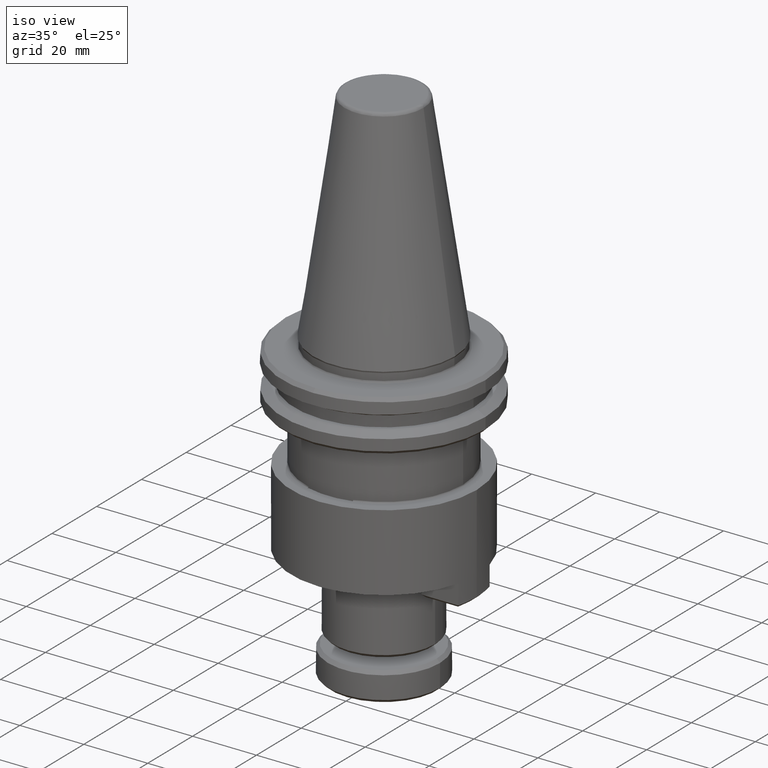
[diagram: clean part render]
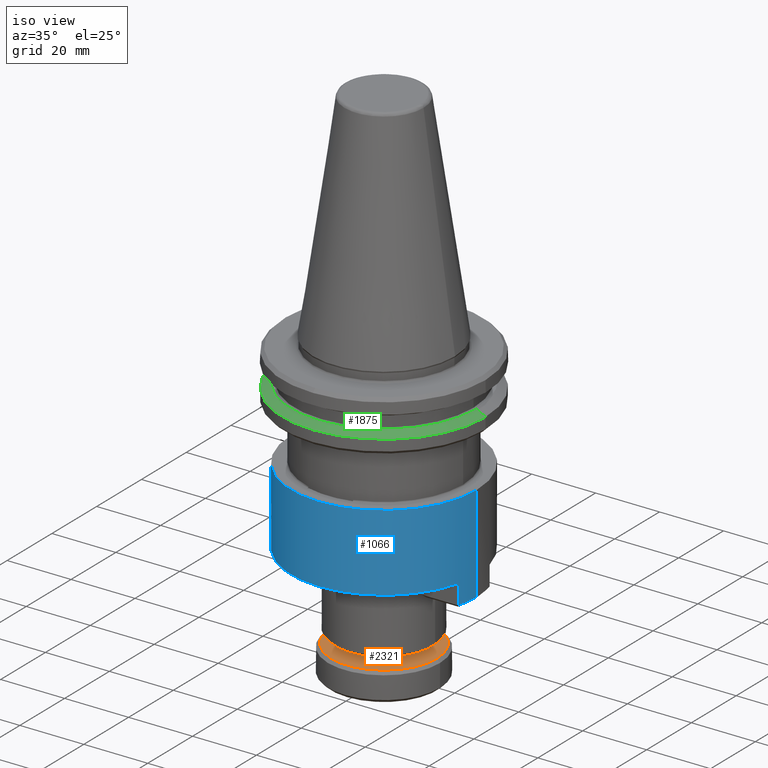
[diagram: same view with three faces highlighted in distinct colors, each labeled with its STEP entity id]
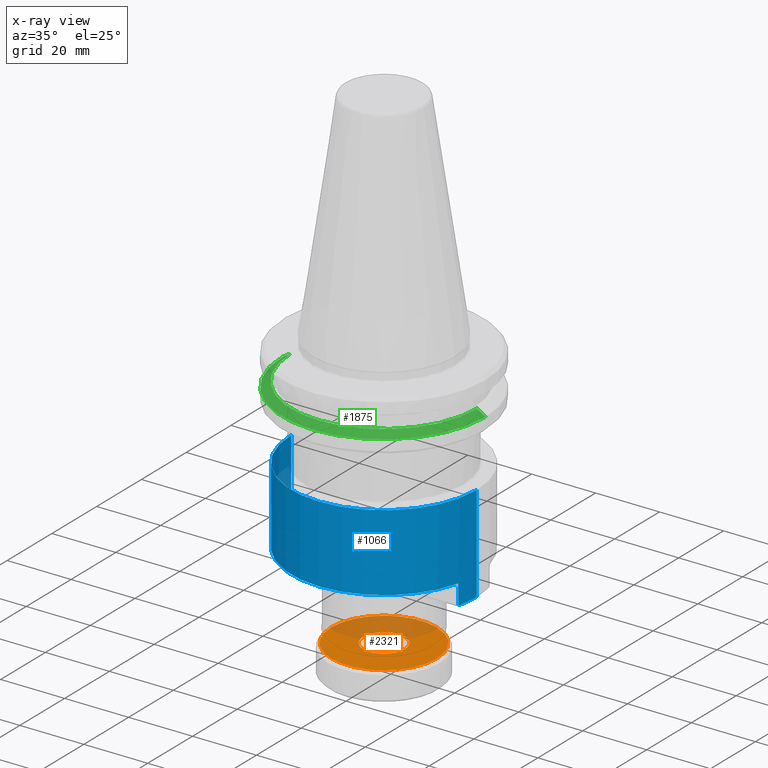
[diagram: x-ray of the same camera — body ghosted, the three highlighted faces saturated]
A machine part, iso view with three faces highlighted in distinct colors.
The next image is the same camera in x-ray (body ghosted, the three faces saturated) — at least one of them is partly hidden behind the body in this view.
Their STEP definitions:

[orange] entity #2321 — the highlighted planar face has unit normal (0, -0, 1).
#50 = CARTESIAN_POINT ( 'NONE',  ( 76.12787623287346200, 95.73300316906220100, 8.763988602712823100 ) ) ;
#64 = CARTESIAN_POINT ( 'NONE',  ( 78.41946340499964700, 98.90369755947129700, 8.763988602712824900 ) ) ;
#68 = VERTEX_POINT ( 'NONE', #3329 ) ;
#77 = CARTESIAN_POINT ( 'NONE',  ( 80.75551400868872100, 100.0017903558217400, 8.763988602712823100 ) ) ;
#89 = CARTESIAN_POINT ( 'NONE',  ( 83.45564309301649100, 100.0823529544989900, 8.763988602712824900 ) ) ;
#102 = CARTESIAN_POINT ( 'NONE',  ( 86.57789196611868500, 98.59929565824862200, 8.763988602712821300 ) ) ;
#114 = CARTESIAN_POINT ( 'NONE',  ( 88.33270326881370200, 96.10317416616021500, 8.763988602712826600 ) ) ;
#154 = EDGE_CURVE ( 'NONE', #68, #2818, #2777, .T. ) ;
#160 = CARTESIAN_POINT ( 'NONE',  ( 88.74564547168917300, 92.84622996054110900, 8.763988602712824900 ) ) ;
#177 = CARTESIAN_POINT ( 'NONE',  ( 87.96745397197193500, 90.50350040067402800, 8.763988602712824900 ) ) ;
#188 = CARTESIAN_POINT ( 'NONE',  ( 85.04454145384464400, 87.79266168346958900, 8.763988602712823100 ) ) ;
#204 = CARTESIAN_POINT ( 'NONE',  ( 82.69599153489440400, 87.18611175048717100, 8.763988602712823100 ) ) ;
#218 = CARTESIAN_POINT ( 'NONE',  ( 79.95717612321318800, 87.62226208415816600, 8.763988602712823100 ) ) ;
#219 = CARTESIAN_POINT ( 'NONE',  ( 88.79877265865518200, 93.68607934060428000, 8.763988602712824900 ) ) ;
#224 = CARTESIAN_POINT ( 'NONE',  ( 75.81233704681672200, 94.18164415366432300, 8.763988602712826600 ) ) ;
#228 = CARTESIAN_POINT ( 'NONE',  ( 76.88833099999423800, 90.08329245969986200, 8.763988602712823100 ) ) ;
#233 = AXIS2_PLACEMENT_3D ( 'NONE', #2259, #1476, #3283 ) ;
#244 = CARTESIAN_POINT ( 'NONE',  ( 75.91704237217857100, 92.45150199464153200, 8.763988602712824900 ) ) ;
#252 = ORIENTED_EDGE ( 'NONE', *, *, #1668, .T. ) ;
#344 = CARTESIAN_POINT ( 'NONE',  ( 76.21694135145028800, 95.98043893000947000, 8.763988602712826600 ) ) ;
#355 = CARTESIAN_POINT ( 'NONE',  ( 78.64840274964791400, 99.06454904665042700, 8.763988602712824900 ) ) ;
#366 = CARTESIAN_POINT ( 'NONE',  ( 81.01251395400113600, 100.0575963481227000, 8.763988602712824900 ) ) ;
#383 = CARTESIAN_POINT ( 'NONE',  ( 83.99521615921486300, 99.96703954946983100, 8.763988602712826600 ) ) ;
#393 = CARTESIAN_POINT ( 'NONE',  ( 87.27794175348672900, 97.87496262328792800, 8.763988602712824900 ) ) ;
#404 = CARTESIAN_POINT ( 'NONE',  ( 88.52158608724836600, 95.58475399366973600, 8.763988602712828400 ) ) ;
#420 = B_SPLINE_CURVE_WITH_KNOTS ( 'NONE', 3,
 ( #2780, #1511, #224, #1607, #823, #1852, #1197, #2330, #1598, #1671, #50, #1924, #344, #2183, #616, #2438, #890, #2673, #1150, #2945, #1406, #3209, #1682, #64, #1932, #355, #2199, #626, #2449, #899, #2686, #1162, #2957, #1416, #3220, #1693, #77, #1945, #366, #2208, #638, #2461, #905, #2694, #1177, #2968, #1425, #3233, #1705, #89, #1955, #383, #2220, #649, #2470, #918, #2708, #1188, #2985, #1436, #3246, #1716, #102, #1964, #393, #2237, #660, #2479, #932, #2721, #1200, #3000, #1448, #3256, #1725, #114, #1976, #404, #2245, #676, #2490, #943, #2735, #1213, #3011, #1461 ),
 .UNSPECIFIED., .F., .F.,
 ( 4, 1, 1, 1, 2, 2, 1, 1, 2, 2, 1, 2, 2, 2, 1, 1, 2, 2, 1, 1, 1, 2, 2, 1, 1, 1, 2, 2, 2, 1, 1, 1, 2, 2, 1, 1, 2, 2, 1, 2, 2, 2, 1, 1, 2, 2, 1, 1, 1, 2, 2, 1, 1, 1, 2, 2, 4 ),
 ( 0.0000000000000000000, 0.03124999999999634300, 0.04687499999999549700, 0.05468749999999415100, 0.05859374999999364400, 0.06249999999999314400, 0.09375000000000187400, 0.1093750000000072400, 0.1171875000000102600, 0.1250000000000132700, 0.1562500000000322800, 0.1718750000000413600, 0.1875000000000504300, 0.2500000000000878200, 0.2812500000001071900, 0.2968750000001168500, 0.3046875000001215100, 0.3125000000001261200, 0.3437500000001418900, 0.3593750000001493800, 0.3671875000001527100, 0.3710937500001534900, 0.3750000000001542100, 0.4062500000001663700, 0.4218750000001734200, 0.4296875000001779100, 0.4335937500001801900, 0.4375000000001824700, 0.5000000000001964000, 0.5312500000002045000, 0.5468750000002076100, 0.5546875000002090500, 0.5585937500002087200, 0.5625000000002083900, 0.5937500000001977300, 0.6093750000001934000, 0.6171875000001898500, 0.6250000000001864100, 0.6562500000001717500, 0.6718750000001632000, 0.6875000000001545400, 0.7500000000001145800, 0.7812500000000940400, 0.7968750000000836000, 0.8046875000000771600, 0.8125000000000707200, 0.8437500000000467400, 0.8593750000000351900, 0.8671875000000294200, 0.8710937500000265300, 0.8750000000000236500, 0.9062500000000071100, 0.9218749999999997800, 0.9296874999999961100, 0.9335937499999953400, 0.9374999999999945600, 1.000000000000000000 ),
 .UNSPECIFIED. ) ;
#449 = CARTESIAN_POINT ( 'NONE',  ( 88.70763692569487100, 92.60115896036670300, 8.763988602712824900 ) ) ;
#466 = CARTESIAN_POINT ( 'NONE',  ( 87.80057448302852700, 90.22304278080795800, 8.763988602712824900 ) ) ;
#479 = CARTESIAN_POINT ( 'NONE',  ( 84.79317840665736100, 87.68368785620816700, 8.763988602712824900 ) ) ;
#487 = CARTESIAN_POINT ( 'NONE',  ( 81.80336116186100500, 87.19961537011829500, 8.763988602712826600 ) ) ;
#499 = CARTESIAN_POINT ( 'NONE',  ( 79.40349253642507700, 87.85920262222889200, 8.763988602712823100 ) ) ;
#511 = CARTESIAN_POINT ( 'NONE',  ( 76.57270354416377200, 90.59621130401431800, 8.763988602712824900 ) ) ;
#524 = CARTESIAN_POINT ( 'NONE',  ( 75.83494436041925700, 92.89407642504942000, 8.763988602712826600 ) ) ;
#565 = CIRCLE ( 'NONE', #601, 16.50000000000000000 ) ;
#568 = FACE_OUTER_BOUND ( 'NONE', #1866, .T. ) ;
#584 = FACE_BOUND ( 'NONE', #3104, .T. ) ;
#601 = AXIS2_PLACEMENT_3D ( 'NONE', #2871, #1340, #3147 ) ;
#616 = CARTESIAN_POINT ( 'NONE',  ( 76.33592189990831400, 96.28277125959395700, 8.763988602712826600 ) ) ;
#626 = CARTESIAN_POINT ( 'NONE',  ( 78.92560319725342300, 99.24666682056488300, 8.763988602712826600 ) ) ;
#638 = CARTESIAN_POINT ( 'NONE',  ( 81.09160147081269100, 100.0730448018101300, 8.763988602712826600 ) ) ;
#649 = CARTESIAN_POINT ( 'NONE',  ( 84.49436316700894200, 99.80427421034370600, 8.763988602712823100 ) ) ;
#660 = CARTESIAN_POINT ( 'NONE',  ( 87.61357019211214900, 97.42857663722945500, 8.763988602712826600 ) ) ;
#676 = CARTESIAN_POINT ( 'NONE',  ( 88.65451107700984300, 95.04972393669741800, 8.763988602712821300 ) ) ;
#717 = CARTESIAN_POINT ( 'NONE',  ( 88.69504627254963200, 92.52920890624257300, 8.763988602712824900 ) ) ;
#728 = CARTESIAN_POINT ( 'NONE',  ( 87.21198897630320300, 89.40696003314300800, 8.763988602712823100 ) ) ;
#741 = CARTESIAN_POINT ( 'NONE',  ( 84.71586748421111700, 87.65214873044577400, 8.763988602712826600 ) ) ;
#758 = CARTESIAN_POINT ( 'NONE',  ( 81.28736336085155800, 87.26490993988488800, 8.763988602712824900 ) ) ;
#767 = CARTESIAN_POINT ( 'NONE',  ( 78.92716992593202000, 88.12779971170404300, 8.763988602712828400 ) ) ;
#776 = CARTESIAN_POINT ( 'NONE',  ( 76.32810907127614500, 91.11575539422870000, 8.763988602712828400 ) ) ;
#794 = CARTESIAN_POINT ( 'NONE',  ( 75.79877265865516700, 93.68607934060428000, 8.763988602712824900 ) ) ;
#823 = CARTESIAN_POINT ( 'NONE',  ( 75.87761566484408600, 94.69755571427418800, 8.763988602712824900 ) ) ;
#890 = CARTESIAN_POINT ( 'NONE',  ( 76.63009134533615500, 96.86865828053039700, 8.763988602712823100 ) ) ;
#899 = CARTESIAN_POINT ( 'NONE',  ( 79.55300386346239300, 99.57949699773628500, 8.763988602712826600 ) ) ;
#905 = CARTESIAN_POINT ( 'NONE',  ( 81.90155378240909600, 100.1860469307214200, 8.763988602712826600 ) ) ;
#918 = CARTESIAN_POINT ( 'NONE',  ( 84.64036919409780100, 99.74989659704996800, 8.763988602712824900 ) ) ;
#932 = CARTESIAN_POINT ( 'NONE',  ( 87.70921431731611100, 97.28886622150878300, 8.763988602712824900 ) ) ;
#943 = CARTESIAN_POINT ( 'NONE',  ( 88.68050294513174900, 94.92065668656711400, 8.763988602712824900 ) ) ;
#992 = CARTESIAN_POINT ( 'NONE',  ( 88.57973286752329000, 91.98963584005026900, 8.763988602712823100 ) ) ;
#1001 = CARTESIAN_POINT ( 'NONE',  ( 86.48765594133554700, 88.70691024577077100, 8.763988602712824900 ) ) ;
#1017 = CARTESIAN_POINT ( 'NONE',  ( 84.19744731172070800, 87.46326591201133700, 8.763988602712823100 ) ) ;
#1024 = CARTESIAN_POINT ( 'NONE',  ( 81.16493536286235200, 87.28568889153126500, 8.763988602712826600 ) ) ;
#1033 = CARTESIAN_POINT ( 'NONE',  ( 78.36660191282848600, 88.49093252348696100, 8.763988602712828400 ) ) ;
#1050 = CARTESIAN_POINT ( 'NONE',  ( 76.27553535439435000, 91.24244740238012200, 8.763988602712824900 ) ) ;
#1059 = DIRECTION ( 'NONE',  ( -1.000000000000000000, 0.0000000000000000000, 0.0000000000000000000 ) ) ;
#1084 = ORIENTED_EDGE ( 'NONE', *, *, #1789, .T. ) ;
#1132 = CARTESIAN_POINT ( 'NONE',  ( 82.29877265865518200, 93.68607934060428000, 8.763988602712824900 ) ) ;
#1145 = AXIS2_PLACEMENT_3D ( 'NONE', #1132, #1550, #1059 ) ;
#1150 = CARTESIAN_POINT ( 'NONE',  ( 76.79697083428216300, 97.14911590040081500, 8.763988602712824900 ) ) ;
#1162 = CARTESIAN_POINT ( 'NONE',  ( 79.80436691065183700, 99.68847082499945600, 8.763988602712824900 ) ) ;
#1177 = CARTESIAN_POINT ( 'NONE',  ( 82.79418415545535500, 100.1725433110903200, 8.763988602712826600 ) ) ;
#1188 = CARTESIAN_POINT ( 'NONE',  ( 85.19405278088073900, 99.51295605898292300, 8.763988602712828400 ) ) ;
#1197 = CARTESIAN_POINT ( 'NONE',  ( 75.89838613421645200, 94.81993785427322100, 8.763988602712826600 ) ) ;
#1200 = CARTESIAN_POINT ( 'NONE',  ( 88.02484177314671900, 96.77594737719405800, 8.763988602712824900 ) ) ;
#1213 = CARTESIAN_POINT ( 'NONE',  ( 88.76260095689110600, 94.47808225616042000, 8.763988602712828400 ) ) ;
#1261 = CARTESIAN_POINT ( 'NONE',  ( 88.41696752839590100, 91.49048883225324900, 8.763988602712824900 ) ) ;
#1270 = CARTESIAN_POINT ( 'NONE',  ( 86.04126995527875000, 88.37128180714638900, 8.763988602712826600 ) ) ;
#1279 = CARTESIAN_POINT ( 'NONE',  ( 83.66241725474839100, 87.33034092224967500, 8.763988602712824900 ) ) ;
#1280 = CARTESIAN_POINT ( 'NONE',  ( 65.79877265865518200, 93.68607934060428000, 8.763988602712824900 ) ) ;
#1288 = CARTESIAN_POINT ( 'NONE',  ( 80.90889756743473500, 87.33290419939139300, 8.763988602712826600 ) ) ;
#1301 = CARTESIAN_POINT ( 'NONE',  ( 77.54404119581741400, 89.24839638285871500, 8.763988602712828400 ) ) ;
#1314 = CARTESIAN_POINT ( 'NONE',  ( 76.17760192777083700, 91.48929743568257300, 8.763988602712826600 ) ) ;
#1331 = ORIENTED_EDGE ( 'NONE', *, *, #2354, .T. ) ;
#1340 = DIRECTION ( 'NONE',  ( -0.0000000000000000000, -0.0000000000000000000, 1.000000000000000000 ) ) ;
#1406 = CARTESIAN_POINT ( 'NONE',  ( 77.38555634100380600, 97.96519864806259600, 8.763988602712824900 ) ) ;
#1416 = CARTESIAN_POINT ( 'NONE',  ( 79.88167783309964400, 99.72000995076285800, 8.763988602712826600 ) ) ;
#1425 = CARTESIAN_POINT ( 'NONE',  ( 83.31018195646142000, 100.1072487413236400, 8.763988602712824900 ) ) ;
#1436 = CARTESIAN_POINT ( 'NONE',  ( 85.67037539137606900, 99.24435896950613800, 8.763988602712826600 ) ) ;
#1448 = CARTESIAN_POINT ( 'NONE',  ( 88.26943624603433100, 96.25640328697981800, 8.763988602712826600 ) ) ;
#1461 = CARTESIAN_POINT ( 'NONE',  ( 88.79877265865518200, 93.68607934060428000, 8.763988602712824900 ) ) ;
#1476 = DIRECTION ( 'NONE',  ( 0.0000000000000000000, -0.0000000000000000000, 1.000000000000000000 ) ) ;
#1498 = CARTESIAN_POINT ( 'NONE',  ( 88.79877265865516700, 93.48738229319032200, 8.763988602712824900 ) ) ;
#1507 = CARTESIAN_POINT ( 'NONE',  ( 88.36258991510114000, 91.34448280516225800, 8.763988602712826600 ) ) ;
#1511 = CARTESIAN_POINT ( 'NONE',  ( 75.79877265865515300, 93.88477638801866500, 8.763988602712826600 ) ) ;
#1516 = CARTESIAN_POINT ( 'NONE',  ( 85.90155953955968500, 88.27563768194342200, 8.763988602712826600 ) ) ;
#1533 = CARTESIAN_POINT ( 'NONE',  ( 83.53335000461801500, 87.30434905412775500, 8.763988602712826600 ) ) ;
#1548 = CARTESIAN_POINT ( 'NONE',  ( 80.25184883019009900, 87.51518291482405200, 8.763988602712823100 ) ) ;
#1550 = DIRECTION ( 'NONE',  ( -0.0000000000000000000, -0.0000000000000000000, 1.000000000000000000 ) ) ;
#1560 = CARTESIAN_POINT ( 'NONE',  ( 77.08115443979068000, 89.80677008694553400, 8.763988602712824900 ) ) ;
#1572 = CARTESIAN_POINT ( 'NONE',  ( 75.98306164343699700, 92.14282069064248000, 8.763988602712824900 ) ) ;
#1598 = CARTESIAN_POINT ( 'NONE',  ( 75.94559751744114400, 95.07595443181924100, 8.763988602712824900 ) ) ;
#1607 = CARTESIAN_POINT ( 'NONE',  ( 75.85189984562116200, 94.52592872066803400, 8.763988602712826600 ) ) ;
#1668 = EDGE_CURVE ( 'NONE', #3393, #2845, #420, .T. ) ;
#1671 = CARTESIAN_POINT ( 'NONE',  ( 76.01781244978670300, 95.38252284115550600, 8.763988602712826600 ) ) ;
#1682 = CARTESIAN_POINT ( 'NONE',  ( 78.10988937597773000, 98.66524843544044600, 8.763988602712828400 ) ) ;
#1693 = CARTESIAN_POINT ( 'NONE',  ( 80.40009800558422600, 99.90889276919683900, 8.763988602712823100 ) ) ;
#1705 = CARTESIAN_POINT ( 'NONE',  ( 83.43260995444885000, 100.0864697896773000, 8.763988602712826600 ) ) ;
#1716 = CARTESIAN_POINT ( 'NONE',  ( 86.23094340448075500, 98.88122615772202600, 8.763988602712828400 ) ) ;
#1725 = CARTESIAN_POINT ( 'NONE',  ( 88.32200996291598500, 96.12971127882845200, 8.763988602712828400 ) ) ;
#1761 = CARTESIAN_POINT ( 'NONE',  ( 88.78520827049359800, 93.19051452754500500, 8.763988602712824900 ) ) ;
#1772 = CARTESIAN_POINT ( 'NONE',  ( 88.12564937703186300, 90.79079921837482900, 8.763988602712826600 ) ) ;
#1782 = CARTESIAN_POINT ( 'NONE',  ( 85.38864069524478900, 87.96001022611251600, 8.763988602712824900 ) ) ;
#1789 = EDGE_CURVE ( 'NONE', #2845, #3393, #2551, .T. ) ;
#1791 = CARTESIAN_POINT ( 'NONE',  ( 83.09095094472091600, 87.22228350986580400, 8.763988602712828400 ) ) ;
#1801 = CARTESIAN_POINT ( 'NONE',  ( 80.00441306924746200, 87.60424803339991200, 8.763988602712826600 ) ) ;
#1821 = CARTESIAN_POINT ( 'NONE',  ( 76.92030295260997300, 90.03570943159587600, 8.763988602712826600 ) ) ;
#1831 = CARTESIAN_POINT ( 'NONE',  ( 75.92725565113657600, 92.39982063595189700, 8.763988602712826600 ) ) ;
#1852 = CARTESIAN_POINT ( 'NONE',  ( 75.88990839161546400, 94.77099972084208400, 8.763988602712824900 ) ) ;
#1866 = EDGE_LOOP ( 'NONE', ( #1331, #2067 ) ) ;
#1924 = CARTESIAN_POINT ( 'NONE',  ( 76.18057778891429200, 95.88166984895396200, 8.763988602712824900 ) ) ;
#1932 = CARTESIAN_POINT ( 'NONE',  ( 78.55627536203303400, 99.00087687406346500, 8.763988602712823100 ) ) ;
#1945 = CARTESIAN_POINT ( 'NONE',  ( 80.93512806255959900, 100.0418177589587100, 8.763988602712824900 ) ) ;
#1955 = CARTESIAN_POINT ( 'NONE',  ( 83.68864774987501700, 100.0392544818166600, 8.763988602712824900 ) ) ;
#1964 = CARTESIAN_POINT ( 'NONE',  ( 87.05350412149221000, 98.12376229835098200, 8.763988602712826600 ) ) ;
#1976 = CARTESIAN_POINT ( 'NONE',  ( 88.41994338953935500, 95.88286124552641400, 8.763988602712826600 ) ) ;
#2027 = CARTESIAN_POINT ( 'NONE',  ( 88.71992965246627700, 92.67460296693472800, 8.763988602712828400 ) ) ;
#2039 = CARTESIAN_POINT ( 'NONE',  ( 87.85705228755611500, 90.31447660788146000, 8.763988602712826600 ) ) ;
#2044 = CARTESIAN_POINT ( 'NONE',  ( 84.86909660503064900, 87.71541575322507400, 8.763988602712828400 ) ) ;
#2055 = CARTESIAN_POINT ( 'NONE',  ( 82.10016322053556300, 87.18606313566286300, 8.763988602712828400 ) ) ;
#2067 = ORIENTED_EDGE ( 'NONE', *, *, #154, .T. ) ;
#2070 = CARTESIAN_POINT ( 'NONE',  ( 79.70208073966216500, 87.72322858185985700, 8.763988602712826600 ) ) ;
#2086 = CARTESIAN_POINT ( 'NONE',  ( 76.73818517869278800, 90.31290987920485200, 8.763988602712826600 ) ) ;
#2096 = CARTESIAN_POINT ( 'NONE',  ( 75.91180922666794100, 92.47889719210506600, 8.763988602712823100 ) ) ;
#2183 = CARTESIAN_POINT ( 'NONE',  ( 76.23495540220966400, 96.02767587604711300, 8.763988602712826600 ) ) ;
#2199 = CARTESIAN_POINT ( 'NONE',  ( 78.69598577775133200, 99.09652099926567800, 8.763988602712823100 ) ) ;
#2208 = CARTESIAN_POINT ( 'NONE',  ( 81.06419531269160900, 100.0678096270807900, 8.763988602712828400 ) ) ;
#2220 = CARTESIAN_POINT ( 'NONE',  ( 84.34569648711946900, 99.85697576638375500, 8.763988602712823100 ) ) ;
#2237 = CARTESIAN_POINT ( 'NONE',  ( 87.51639087751873100, 97.56538859426447600, 8.763988602712826600 ) ) ;
#2245 = CARTESIAN_POINT ( 'NONE',  ( 88.61448367387313900, 95.22933799056660600, 8.763988602712826600 ) ) ;
#2259 = CARTESIAN_POINT ( 'NONE',  ( 82.29877265865518200, 77.18607934060428000, 8.763988602712824900 ) ) ;
#2290 = CARTESIAN_POINT ( 'NONE',  ( 88.69915918309391100, 92.55222082693543900, 8.763988602712826600 ) ) ;
#2301 = CARTESIAN_POINT ( 'NONE',  ( 87.49391947576801000, 89.75390859477241200, 8.763988602712830200 ) ) ;
#2309 = CARTESIAN_POINT ( 'NONE',  ( 84.74240459687928300, 87.66284203634346300, 8.763988602712826600 ) ) ;
#2317 = CARTESIAN_POINT ( 'NONE',  ( 81.45903826579079500, 87.23918525858464100, 8.763988602712828400 ) ) ;
#2321 = ADVANCED_FACE ( 'NONE', ( #584, #568 ), #3261, .T. ) ;
#2325 = CARTESIAN_POINT ( 'NONE',  ( 79.11619371872440400, 88.01739802728859300, 8.763988602712824900 ) ) ;
#2330 = CARTESIAN_POINT ( 'NONE',  ( 75.90249904476073100, 94.84294977496624300, 8.763988602712824900 ) ) ;
#2336 = CARTESIAN_POINT ( 'NONE',  ( 76.40535500152076100, 90.94031054541457600, 8.763988602712824900 ) ) ;
#2348 = CARTESIAN_POINT ( 'NONE',  ( 75.79877265865515300, 93.28832970527571400, 8.763988602712819500 ) ) ;
#2354 = EDGE_CURVE ( 'NONE', #2818, #68, #565, .T. ) ;
#2438 = CARTESIAN_POINT ( 'NONE',  ( 76.47189594027561600, 96.58135946282850200, 8.763988602712826600 ) ) ;
#2449 = CARTESIAN_POINT ( 'NONE',  ( 79.20890462206109800, 99.41214845509246300, 8.763988602712824900 ) ) ;
#2461 = CARTESIAN_POINT ( 'NONE',  ( 81.50659437259314200, 100.1498751713427700, 8.763988602712826600 ) ) ;
#2470 = CARTESIAN_POINT ( 'NONE',  ( 84.59313224806264500, 99.76791064780842100, 8.763988602712826600 ) ) ;
#2479 = CARTESIAN_POINT ( 'NONE',  ( 87.67724236470006400, 97.33644924961322400, 8.763988602712828400 ) ) ;
#2490 = CARTESIAN_POINT ( 'NONE',  ( 88.67028966617373000, 94.97233804525687600, 8.763988602712824900 ) ) ;
#2535 = CARTESIAN_POINT ( 'NONE',  ( 88.65194779986897800, 92.29620424938768500, 8.763988602712823100 ) ) ;
#2547 = CARTESIAN_POINT ( 'NONE',  ( 86.73645561640000800, 88.93134787776607200, 8.763988602712826600 ) ) ;
#2551 = B_SPLINE_CURVE_WITH_KNOTS ( 'NONE', 3,
 ( #3054, #1498, #1761, #160, #2027, #449, #2290, #717, #2535, #992, #2786, #1261, #3064, #1507, #3313, #1772, #177, #2039, #466, #2301, #728, #2547, #1001, #2796, #1270, #3074, #1516, #3322, #1782, #188, #2044, #479, #2309, #741, #2555, #1017, #2802, #1279, #3082, #1533, #3327, #1791, #204, #2055, #487, #2317, #758, #2565, #1024, #2815, #1288, #3094, #1548, #3346, #1801, #218, #2070, #499, #2325, #767, #2574, #1033, #2824, #1301, #3101, #1560, #3356, #1821, #228, #2086, #511, #2336, #776, #2585, #1050, #2838, #1314, #3118, #1572, #3371, #1831, #244, #2096, #524, #2348, #794 ),
 .UNSPECIFIED., .F., .F.,
 ( 4, 1, 1, 1, 2, 2, 1, 1, 2, 2, 1, 2, 2, 2, 1, 1, 2, 2, 1, 1, 1, 2, 2, 1, 1, 1, 2, 2, 2, 1, 1, 1, 2, 2, 1, 1, 2, 2, 1, 2, 2, 2, 1, 1, 2, 2, 1, 1, 1, 2, 2, 1, 1, 1, 2, 2, 4 ),
 ( 0.0000000000000000000, 0.03125000000000035400, 0.04687500000000152000, 0.05468750000000116600, 0.05859375000000116600, 0.06250000000000116600, 0.09375000000000985300, 0.1093750000000131800, 0.1171875000000138900, 0.1250000000000145700, 0.1562500000000173700, 0.1718750000000191800, 0.1875000000000210100, 0.2500000000000320900, 0.2812500000000375800, 0.2968750000000404100, 0.3046875000000417400, 0.3125000000000431300, 0.3437500000000442400, 0.3593750000000452400, 0.3671875000000448500, 0.3710937500000455700, 0.3750000000000463000, 0.4062500000000481300, 0.4218750000000500700, 0.4296875000000510700, 0.4335937500000517400, 0.4375000000000524600, 0.5000000000000606200, 0.5312500000000636200, 0.5468750000000639500, 0.5546875000000641700, 0.5585937500000641700, 0.5625000000000641700, 0.5937500000000628400, 0.6093750000000610600, 0.6171875000000598400, 0.6250000000000586200, 0.6562500000000575100, 0.6718750000000556200, 0.6875000000000537300, 0.7500000000000425200, 0.7812500000000375300, 0.7968750000000349700, 0.8046875000000337500, 0.8125000000000325300, 0.8437500000000314200, 0.8593750000000313100, 0.8671875000000312000, 0.8710937500000299800, 0.8750000000000286400, 0.9062500000000187600, 0.9218750000000148800, 0.9296875000000126600, 0.9335937500000117700, 0.9375000000000109900, 1.000000000000000000 ),
 .UNSPECIFIED. ) ;
#2555 = CARTESIAN_POINT ( 'NONE',  ( 84.49555456357738600, 87.56490860972026300, 8.763988602712826600 ) ) ;
#2565 = CARTESIAN_POINT ( 'NONE',  ( 81.21389266082671600, 87.27720760409938800, 8.763988602712824900 ) ) ;
#2574 = CARTESIAN_POINT ( 'NONE',  ( 78.83573609885758100, 88.18427751623207200, 8.763988602712824900 ) ) ;
#2585 = CARTESIAN_POINT ( 'NONE',  ( 76.29638117425916700, 91.19167359260200100, 8.763988602712824900 ) ) ;
#2673 = CARTESIAN_POINT ( 'NONE',  ( 76.74049302975285500, 97.05768207332448600, 8.763988602712824900 ) ) ;
#2686 = CARTESIAN_POINT ( 'NONE',  ( 79.72844871227776800, 99.65674292798196600, 8.763988602712823100 ) ) ;
#2694 = CARTESIAN_POINT ( 'NONE',  ( 82.49738209677823900, 100.1860955455457500, 8.763988602712826600 ) ) ;
#2708 = CARTESIAN_POINT ( 'NONE',  ( 84.89546457764559800, 99.64893009935059400, 8.763988602712826600 ) ) ;
#2721 = CARTESIAN_POINT ( 'NONE',  ( 87.85936013861768900, 97.05924880200356600, 8.763988602712826600 ) ) ;
#2735 = CARTESIAN_POINT ( 'NONE',  ( 88.68573609064237900, 94.89326148910340900, 8.763988602712823100 ) ) ;
#2777 = CIRCLE ( 'NONE', #1145, 16.50000000000000000 ) ;
#2780 = CARTESIAN_POINT ( 'NONE',  ( 75.79877265865516700, 93.68607934060428000, 8.763988602712824900 ) ) ;
#2786 = CARTESIAN_POINT ( 'NONE',  ( 88.46966908443661700, 91.63915551214421400, 8.763988602712824900 ) ) ;
#2796 = CARTESIAN_POINT ( 'NONE',  ( 86.17808191231290500, 88.46846112173925300, 8.763988602712828400 ) ) ;
#2802 = CARTESIAN_POINT ( 'NONE',  ( 83.84203130861759200, 87.37036832538649400, 8.763988602712824900 ) ) ;
#2815 = CARTESIAN_POINT ( 'NONE',  ( 81.14190222429391500, 87.28980572670970200, 8.763988602712824900 ) ) ;
#2818 = VERTEX_POINT ( 'NONE', #1280 ) ;
#2824 = CARTESIAN_POINT ( 'NONE',  ( 78.01965335119308500, 88.77286302295783600, 8.763988602712824900 ) ) ;
#2838 = CARTESIAN_POINT ( 'NONE',  ( 76.26484204849670300, 91.26898451504834500, 8.763988602712824900 ) ) ;
#2845 = VERTEX_POINT ( 'NONE', #219 ) ;
#2871 = CARTESIAN_POINT ( 'NONE',  ( 82.29877265865518200, 93.68607934060428000, 8.763988602712824900 ) ) ;
#2945 = CARTESIAN_POINT ( 'NONE',  ( 77.10362584154111700, 97.61825008643533900, 8.763988602712824900 ) ) ;
#2957 = CARTESIAN_POINT ( 'NONE',  ( 79.85514072043044100, 99.70931664486462900, 8.763988602712826600 ) ) ;
#2968 = CARTESIAN_POINT ( 'NONE',  ( 83.13850705152404400, 100.1329734226239500, 8.763988602712824900 ) ) ;
#2985 = CARTESIAN_POINT ( 'NONE',  ( 85.48135159858243500, 99.35476065392256800, 8.763988602712826600 ) ) ;
#3000 = CARTESIAN_POINT ( 'NONE',  ( 88.19219031578971600, 96.43184813579385700, 8.763988602712826600 ) ) ;
#3011 = CARTESIAN_POINT ( 'NONE',  ( 88.79877265865522400, 94.08382897593411100, 8.763988602712828400 ) ) ;
#3054 = CARTESIAN_POINT ( 'NONE',  ( 88.79877265865518200, 93.68607934060428000, 8.763988602712824900 ) ) ;
#3064 = CARTESIAN_POINT ( 'NONE',  ( 88.38060396585999000, 91.39171975119833700, 8.763988602712826600 ) ) ;
#3070 = CARTESIAN_POINT ( 'NONE',  ( 75.79877265865516700, 93.68607934060428000, 8.763988602712824900 ) ) ;
#3074 = CARTESIAN_POINT ( 'NONE',  ( 85.94914256766323000, 88.30760963455892900, 8.763988602712828400 ) ) ;
#3082 = CARTESIAN_POINT ( 'NONE',  ( 83.58503136330784900, 87.31456233308581700, 8.763988602712826600 ) ) ;
#3094 = CARTESIAN_POINT ( 'NONE',  ( 80.60232915809446300, 87.40511913173777700, 8.763988602712828400 ) ) ;
#3101 = CARTESIAN_POINT ( 'NONE',  ( 77.31960356382236900, 89.49719605792250800, 8.763988602712823100 ) ) ;
#3104 = EDGE_LOOP ( 'NONE', ( #252, #1084 ) ) ;
#3118 = CARTESIAN_POINT ( 'NONE',  ( 76.07595923006164200, 91.78740468753950700, 8.763988602712824900 ) ) ;
#3147 = DIRECTION ( 'NONE',  ( -1.000000000000000000, 0.0000000000000000000, 0.0000000000000000000 ) ) ;
#3209 = CARTESIAN_POINT ( 'NONE',  ( 77.86108970091207500, 98.44081080344402300, 8.763988602712830200 ) ) ;
#3220 = CARTESIAN_POINT ( 'NONE',  ( 80.10199075372989300, 99.80725007148815600, 8.763988602712826600 ) ) ;
#3233 = CARTESIAN_POINT ( 'NONE',  ( 83.38365265648522500, 100.0949510771091900, 8.763988602712824900 ) ) ;
#3246 = CARTESIAN_POINT ( 'NONE',  ( 85.76180921845308100, 99.18788116497643200, 8.763988602712824900 ) ) ;
#3256 = CARTESIAN_POINT ( 'NONE',  ( 88.30116414305123800, 96.18048508860653100, 8.763988602712826600 ) ) ;
#3261 = PLANE ( 'NONE',  #233 ) ;
#3283 = DIRECTION ( 'NONE',  ( 1.000000000000000000, 0.0000000000000000000, -0.0000000000000000000 ) ) ;
#3313 = CARTESIAN_POINT ( 'NONE',  ( 88.26162341740045700, 91.08938742161163300, 8.763988602712826600 ) ) ;
#3322 = CARTESIAN_POINT ( 'NONE',  ( 85.67194212005436800, 88.12549186064164500, 8.763988602712824900 ) ) ;
#3327 = CARTESIAN_POINT ( 'NONE',  ( 83.50594384649745900, 87.29911387939847600, 8.763988602712826600 ) ) ;
#3329 = CARTESIAN_POINT ( 'NONE',  ( 98.79877265865518200, 93.68607934060428000, 8.763988602712824900 ) ) ;
#3346 = CARTESIAN_POINT ( 'NONE',  ( 80.10318215030092400, 87.56788447086438500, 8.763988602712824900 ) ) ;
#3356 = CARTESIAN_POINT ( 'NONE',  ( 76.98397512519761700, 89.94358204398005800, 8.763988602712823100 ) ) ;
#3371 = CARTESIAN_POINT ( 'NONE',  ( 75.94303424030032100, 92.32243474451142600, 8.763988602712824900 ) ) ;
#3393 = VERTEX_POINT ( 'NONE', #3070 ) ;

[blue] entity #1066 — the highlighted cylindrical surface (partial cylindrical patch) has radius 29 mm, axis along (0, -0, 1).
#19 = CARTESIAN_POINT ( 'NONE',  ( 82.29877265865518200, 93.68607934060428000, 50.76398860371279700 ) ) ;
#58 = CARTESIAN_POINT ( 'NONE',  ( 54.15627809971459800, 86.68607934060428000, 35.76398860483022400 ) ) ;
#86 = EDGE_CURVE ( 'NONE', #3395, #3360, #2889, .T. ) ;
#98 = DIRECTION ( 'NONE',  ( 0.0000000000000000000, 1.000000000000000000, 0.0000000000000000000 ) ) ;
#123 = DIRECTION ( 'NONE',  ( 0.0000000000000000000, -2.990902544787598700E-017, 1.000000000000000000 ) ) ;
#131 = CARTESIAN_POINT ( 'NONE',  ( 82.29877265865518200, 93.68607934060428000, 29.56398860271280100 ) ) ;
#137 = VERTEX_POINT ( 'NONE', #2229 ) ;
#158 = AXIS2_PLACEMENT_3D ( 'NONE', #176, #267, #583 ) ;
#176 = CARTESIAN_POINT ( 'NONE',  ( 82.29877265865518200, 93.68607934060428000, 35.76398860483022400 ) ) ;
#196 = CIRCLE ( 'NONE', #1811, 28.99999999999999600 ) ;
#267 = DIRECTION ( 'NONE',  ( -0.0000000000000000000, -0.0000000000000000000, -1.000000000000000000 ) ) ;
#299 = DIRECTION ( 'NONE',  ( -1.000000000000000000, 0.0000000000000000000, 0.0000000000000000000 ) ) ;
#304 = VERTEX_POINT ( 'NONE', #339 ) ;
#325 = DIRECTION ( 'NONE',  ( -0.0000000000000000000, 2.990902544787598700E-017, -1.000000000000000000 ) ) ;
#339 = CARTESIAN_POINT ( 'NONE',  ( 54.15627810018642000, 86.68607934096907300, 29.56398860216688400 ) ) ;
#382 = VECTOR ( 'NONE', #325, 1000.000000000000000 ) ;
#396 = LINE ( 'NONE', #1905, #382 ) ;
#551 = ORIENTED_EDGE ( 'NONE', *, *, #3072, .T. ) ;
#582 = DIRECTION ( 'NONE',  ( 0.0000000000000000000, -2.990902544787598700E-017, 1.000000000000000000 ) ) ;
#583 = DIRECTION ( 'NONE',  ( -1.000000000000000000, 0.0000000000000000000, 0.0000000000000000000 ) ) ;
#623 = ORIENTED_EDGE ( 'NONE', *, *, #1907, .T. ) ;
#718 = CARTESIAN_POINT ( 'NONE',  ( 53.29877265865518200, 93.68607934060428000, 50.76398860371279700 ) ) ;
#737 = CARTESIAN_POINT ( 'NONE',  ( 53.29877265865517400, 93.68607934060428000, 29.56398860271280100 ) ) ;
#820 = CARTESIAN_POINT ( 'NONE',  ( 110.4412672181010700, 86.68607934263582100, 29.56398860271280100 ) ) ;
#885 = DIRECTION ( 'NONE',  ( 0.0000000000000000000, -0.0000000000000000000, 1.000000000000000000 ) ) ;
#896 = EDGE_CURVE ( 'NONE', #2531, #2173, #2013, .T. ) ;
#974 = LINE ( 'NONE', #2942, #1020 ) ;
#1020 = VECTOR ( 'NONE', #885, 1000.000000000000000 ) ;
#1066 = ADVANCED_FACE ( 'NONE', ( #1728 ), #1796, .T. ) ;
#1141 = EDGE_CURVE ( 'NONE', #3395, #304, #1601, .T. ) ;
#1246 = ORIENTED_EDGE ( 'NONE', *, *, #3178, .T. ) ;
#1265 = VERTEX_POINT ( 'NONE', #2375 ) ;
#1294 = LINE ( 'NONE', #2151, #3262 ) ;
#1299 = DIRECTION ( 'NONE',  ( 0.0000000000000000000, -2.990902544787598700E-017, 1.000000000000000000 ) ) ;
#1399 = ORIENTED_EDGE ( 'NONE', *, *, #896, .F. ) ;
#1408 = CIRCLE ( 'NONE', #2896, 28.99999999999999600 ) ;
#1601 = CIRCLE ( 'NONE', #1960, 28.99999999999999600 ) ;
#1627 = DIRECTION ( 'NONE',  ( 0.0000000000000000000, -0.0000000000000000000, 1.000000000000000000 ) ) ;
#1728 = FACE_OUTER_BOUND ( 'NONE', #2619, .T. ) ;
#1796 = CYLINDRICAL_SURFACE ( 'NONE', #2581, 28.99999999999999600 ) ;
#1811 = AXIS2_PLACEMENT_3D ( 'NONE', #3414, #1881, #299 ) ;
#1855 = VERTEX_POINT ( 'NONE', #820 ) ;
#1881 = DIRECTION ( 'NONE',  ( -0.0000000000000000000, -0.0000000000000000000, -1.000000000000000000 ) ) ;
#1905 = CARTESIAN_POINT ( 'NONE',  ( 110.4412672186063800, 86.68607934466734800, 29.56398860271280100 ) ) ;
#1907 = EDGE_CURVE ( 'NONE', #1265, #137, #974, .T. ) ;
#1960 = AXIS2_PLACEMENT_3D ( 'NONE', #131, #123, #98 ) ;
#2013 = CIRCLE ( 'NONE', #158, 28.99999999999999600 ) ;
#2148 = ORIENTED_EDGE ( 'NONE', *, *, #86, .F. ) ;
#2151 = CARTESIAN_POINT ( 'NONE',  ( 54.15627809959868000, 86.68607934107031100, 29.56398860271280100 ) ) ;
#2160 = ORIENTED_EDGE ( 'NONE', *, *, #2480, .T. ) ;
#2173 = VERTEX_POINT ( 'NONE', #58 ) ;
#2229 = CARTESIAN_POINT ( 'NONE',  ( 111.2987726586551800, 93.68607934060428000, 59.76398860196545800 ) ) ;
#2375 = CARTESIAN_POINT ( 'NONE',  ( 111.2987726586551800, 93.68607934060428000, 29.56398860271280100 ) ) ;
#2480 = EDGE_CURVE ( 'NONE', #2531, #1855, #396, .T. ) ;
#2531 = VERTEX_POINT ( 'NONE', #3196 ) ;
#2581 = AXIS2_PLACEMENT_3D ( 'NONE', #19, #3359, #2982 ) ;
#2619 = EDGE_LOOP ( 'NONE', ( #2148, #3399, #2848, #1399, #2160, #551, #623, #1246 ) ) ;
#2783 = CARTESIAN_POINT ( 'NONE',  ( 53.29877265865518200, 93.68607934060428000, 59.76398860196545800 ) ) ;
#2823 = CARTESIAN_POINT ( 'NONE',  ( 82.29877265865518200, 93.68607934060428000, 29.56398860271280100 ) ) ;
#2830 = VECTOR ( 'NONE', #1627, 1000.000000000000000 ) ;
#2848 = ORIENTED_EDGE ( 'NONE', *, *, #3280, .T. ) ;
#2889 = LINE ( 'NONE', #718, #2830 ) ;
#2896 = AXIS2_PLACEMENT_3D ( 'NONE', #2823, #1299, #3100 ) ;
#2942 = CARTESIAN_POINT ( 'NONE',  ( 111.2987726586551800, 93.68607934060428000, 50.76398860371279700 ) ) ;
#2982 = DIRECTION ( 'NONE',  ( 1.000000000000000000, 0.0000000000000000000, 0.0000000000000000000 ) ) ;
#3072 = EDGE_CURVE ( 'NONE', #1855, #1265, #1408, .T. ) ;
#3100 = DIRECTION ( 'NONE',  ( 0.0000000000000000000, 1.000000000000000000, 0.0000000000000000000 ) ) ;
#3178 = EDGE_CURVE ( 'NONE', #137, #3360, #196, .T. ) ;
#3196 = CARTESIAN_POINT ( 'NONE',  ( 110.4412672186063800, 86.68607934466734800, 35.76398860483022400 ) ) ;
#3262 = VECTOR ( 'NONE', #582, 1000.000000000000000 ) ;
#3280 = EDGE_CURVE ( 'NONE', #304, #2173, #1294, .T. ) ;
#3359 = DIRECTION ( 'NONE',  ( 0.0000000000000000000, -0.0000000000000000000, 1.000000000000000000 ) ) ;
#3360 = VERTEX_POINT ( 'NONE', #2783 ) ;
#3395 = VERTEX_POINT ( 'NONE', #737 ) ;
#3399 = ORIENTED_EDGE ( 'NONE', *, *, #1141, .T. ) ;
#3414 = CARTESIAN_POINT ( 'NONE',  ( 82.29877265865518200, 93.68607934060428000, 59.76398860196545800 ) ) ;

[green] entity #1875 — the highlighted conical surface has half-angle 58.733 deg.
#41 = DIRECTION ( 'NONE',  ( -0.8547553646274980200, 0.0000000000000000000, -0.5190310844646136600 ) ) ;
#88 = VECTOR ( 'NONE', #41, 1000.000000000000000 ) ;
#237 = ORIENTED_EDGE ( 'NONE', *, *, #832, .F. ) ;
#332 = LINE ( 'NONE', #1656, #88 ) ;
#400 = DIRECTION ( 'NONE',  ( -0.0000000000000000000, -0.0000000000000000000, 1.000000000000000000 ) ) ;
#431 = CARTESIAN_POINT ( 'NONE',  ( 111.3778852840089100, 93.68607934060429400, 82.76398860269591800 ) ) ;
#558 = LINE ( 'NONE', #431, #604 ) ;
#604 = VECTOR ( 'NONE', #2272, 1000.000000000000000 ) ;
#631 = ORIENTED_EDGE ( 'NONE', *, *, #2332, .F. ) ;
#740 = DIRECTION ( 'NONE',  ( 1.000000000000000000, 0.0000000000000000000, 0.0000000000000000000 ) ) ;
#832 = EDGE_CURVE ( 'NONE', #2117, #2734, #2034, .T. ) ;
#833 = AXIS2_PLACEMENT_3D ( 'NONE', #1923, #400, #740 ) ;
#881 = DIRECTION ( 'NONE',  ( -0.0000000000000000000, -2.997010603902405300E-017, 1.000000000000000000 ) ) ;
#986 = CONICAL_SURFACE ( 'NONE', #1432, 29.07911262535373000, 1.025079325623036400 ) ;
#1018 = FACE_OUTER_BOUND ( 'NONE', #1623, .T. ) ;
#1127 = CARTESIAN_POINT ( 'NONE',  ( 50.54877265864372800, 93.68607934060428000, 81.14215196070618700 ) ) ;
#1432 = AXIS2_PLACEMENT_3D ( 'NONE', #2912, #2617, #3191 ) ;
#1623 = EDGE_LOOP ( 'NONE', ( #631, #237, #1906, #3381 ) ) ;
#1656 = CARTESIAN_POINT ( 'NONE',  ( 53.21966003330144400, 93.68607934060429400, 82.76398860269591800 ) ) ;
#1875 = ADVANCED_FACE ( 'NONE', ( #1018 ), #986, .T. ) ;
#1903 = CIRCLE ( 'NONE', #2833, 31.75000000001145000 ) ;
#1906 = ORIENTED_EDGE ( 'NONE', *, *, #2881, .T. ) ;
#1916 = CARTESIAN_POINT ( 'NONE',  ( 114.0487726586666200, 93.68607934060428000, 81.14215196070618700 ) ) ;
#1923 = CARTESIAN_POINT ( 'NONE',  ( 82.29877265865518200, 93.68607934060429400, 82.76398860269591800 ) ) ;
#2034 = CIRCLE ( 'NONE', #833, 29.07911262535373000 ) ;
#2117 = VERTEX_POINT ( 'NONE', #2120 ) ;
#2120 = CARTESIAN_POINT ( 'NONE',  ( 53.21966003330144400, 93.68607934060429400, 82.76398860269591800 ) ) ;
#2272 = DIRECTION ( 'NONE',  ( 0.8547553646274980200, 1.046773421345094200E-016, -0.5190310844646136600 ) ) ;
#2332 = EDGE_CURVE ( 'NONE', #2734, #3350, #558, .T. ) ;
#2434 = CARTESIAN_POINT ( 'NONE',  ( 82.29877265865518200, 93.68607934060428000, 81.14215196070618700 ) ) ;
#2496 = VERTEX_POINT ( 'NONE', #1127 ) ;
#2617 = DIRECTION ( 'NONE',  ( 0.0000000000000000000, 0.0000000000000000000, -1.000000000000000000 ) ) ;
#2670 = DIRECTION ( 'NONE',  ( 0.0000000000000000000, 1.000000000000000000, 0.0000000000000000000 ) ) ;
#2734 = VERTEX_POINT ( 'NONE', #2788 ) ;
#2788 = CARTESIAN_POINT ( 'NONE',  ( 111.3778852840089100, 93.68607934060429400, 82.76398860269591800 ) ) ;
#2833 = AXIS2_PLACEMENT_3D ( 'NONE', #2434, #881, #2670 ) ;
#2881 = EDGE_CURVE ( 'NONE', #2117, #2496, #332, .T. ) ;
#2912 = CARTESIAN_POINT ( 'NONE',  ( 82.29877265865518200, 93.68607934060429400, 82.76398860269591800 ) ) ;
#3191 = DIRECTION ( 'NONE',  ( -1.000000000000000000, 0.0000000000000000000, 0.0000000000000000000 ) ) ;
#3342 = EDGE_CURVE ( 'NONE', #2496, #3350, #1903, .T. ) ;
#3350 = VERTEX_POINT ( 'NONE', #1916 ) ;
#3381 = ORIENTED_EDGE ( 'NONE', *, *, #3342, .T. ) ;